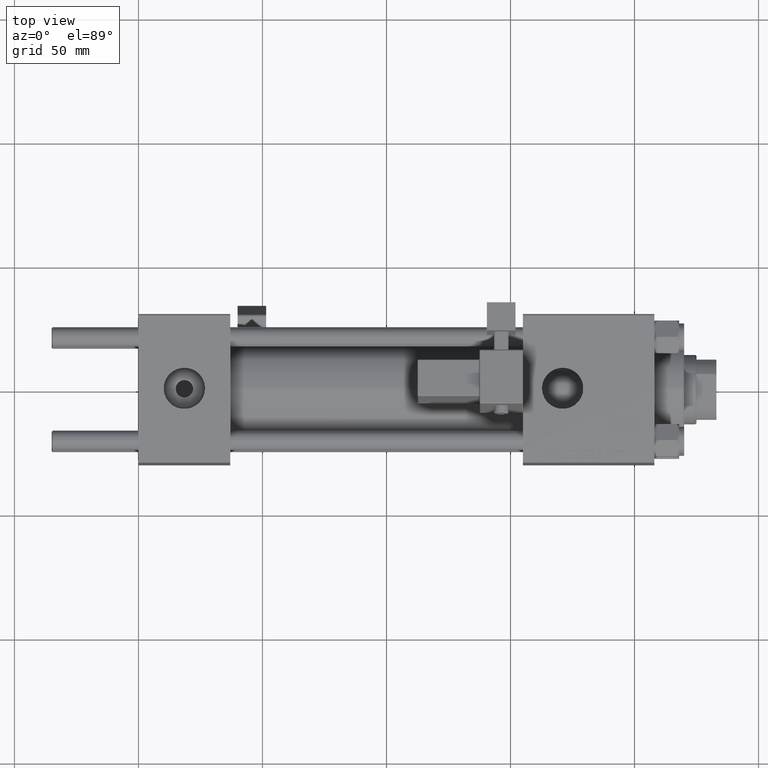
[diagram: clean part render]
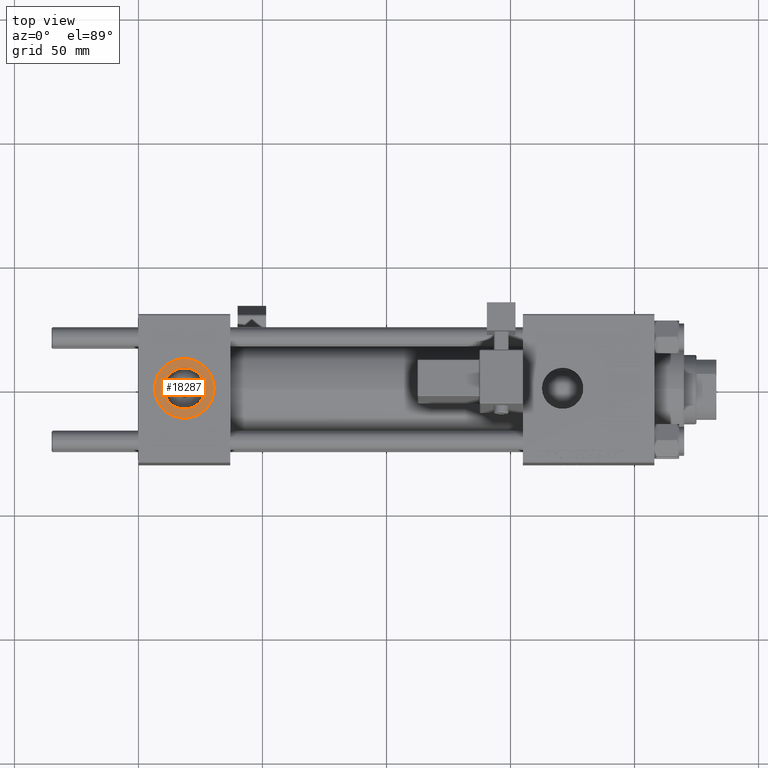
[diagram: same view with one face highlighted and labeled with its STEP entity id]
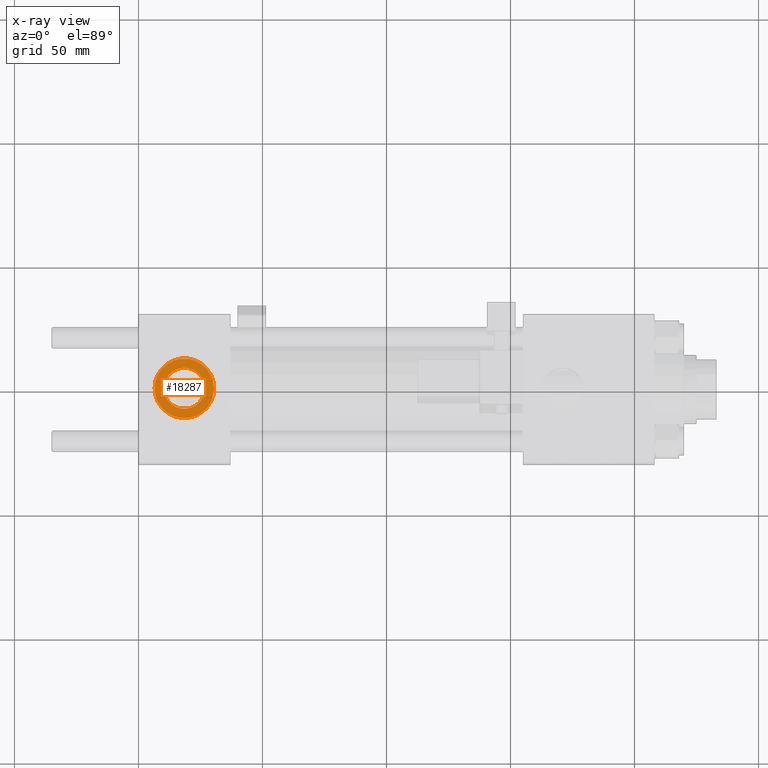
[diagram: x-ray of the same camera — body ghosted, the highlighted face saturated]
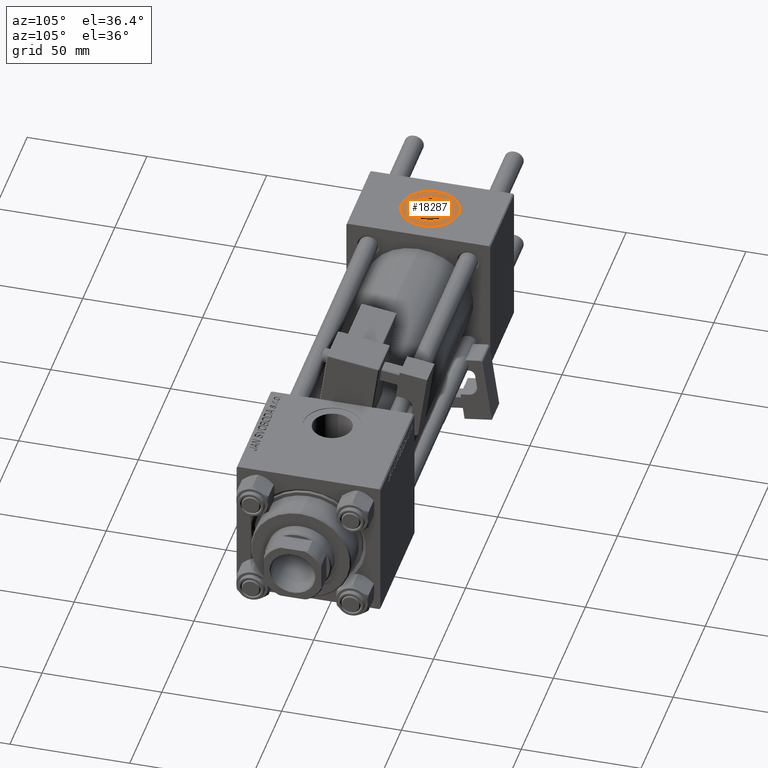
[diagram: same view with one face highlighted and labeled with its STEP entity id]
A machine part, top view. The second image highlights one B-rep face of the part: STEP entity #18287.
The next image is the same camera in x-ray: the body ghosted, the highlighted face saturated — about 0% of this face is hidden behind the body in this view.
A second angle (auxiliary view) of the same face is appended — the face is thin or edge-on in the first view.
In plain terms, the highlighted planar face has unit normal (0, 0, 1).
Its self-contained STEP definition (entity closure, byte-faithful):
#492 = AXIS2_PLACEMENT_3D ( 'NONE', #35419, #51236, #7257 ) ;
#3117 = DIRECTION ( 'NONE',  ( 0.000000000000000000, 0.000000000000000000, 1.000000000000000000 ) ) ;
#4052 = AXIS2_PLACEMENT_3D ( 'NONE', #27112, #3117, #7087 ) ;
#5197 = AXIS2_PLACEMENT_3D ( 'NONE', #50227, #30212, #41271 ) ;
#6198 = EDGE_LOOP ( 'NONE', ( #18844, #41264 ) ) ;
#7087 = DIRECTION ( 'NONE',  ( 1.000000000000000000, 0.000000000000000000, -0.000000000000000000 ) ) ;
#7257 = DIRECTION ( 'NONE',  ( 1.000000000000000000, 0.000000000000000000, 0.000000000000000000 ) ) ;
#8553 = CIRCLE ( 'NONE', #5197, 12.00000000000000000 ) ;
#9729 = CIRCLE ( 'NONE', #44175, 8.330000000000000071 ) ;
#9950 = CIRCLE ( 'NONE', #20049, 12.00000000000000000 ) ;
#11052 = FACE_OUTER_BOUND ( 'NONE', #6198, .T. ) ;
#11439 = ORIENTED_EDGE ( 'NONE', *, *, #13225, .F. ) ;
#12031 = EDGE_CURVE ( 'NONE', #19427, #14432, #9729, .T. ) ;
#13225 = EDGE_CURVE ( 'NONE', #14432, #19427, #47603, .T. ) ;
#14432 = VERTEX_POINT ( 'NONE', #35870 ) ;
#14435 = DIRECTION ( 'NONE',  ( 0.000000000000000000, 0.000000000000000000, 1.000000000000000000 ) ) ;
#17755 = ORIENTED_EDGE ( 'NONE', *, *, #12031, .F. ) ;
#18287 = ADVANCED_FACE ( 'NONE', ( #18449, #11052 ), #26854, .T. ) ;
#18449 = FACE_BOUND ( 'NONE', #36653, .T. ) ;
#18492 = EDGE_CURVE ( 'NONE', #47743, #43041, #9950, .T. ) ;
#18844 = ORIENTED_EDGE ( 'NONE', *, *, #18492, .T. ) ;
#19427 = VERTEX_POINT ( 'NONE', #48091 ) ;
#20049 = AXIS2_PLACEMENT_3D ( 'NONE', #38885, #14435, #26015 ) ;
#23021 = CARTESIAN_POINT ( 'NONE',  ( 30.50000000000000000, -3.469446951953614978E-15, 29.79999999999999716 ) ) ;
#26015 = DIRECTION ( 'NONE',  ( 1.000000000000000000, 0.000000000000000000, 0.000000000000000000 ) ) ;
#26854 = PLANE ( 'NONE',  #4052 ) ;
#27056 = EDGE_CURVE ( 'NONE', #43041, #47743, #8553, .T. ) ;
#27112 = CARTESIAN_POINT ( 'NONE',  ( 18.50000000000000000, -3.469446951953614978E-15, 29.79999999999999716 ) ) ;
#28366 = DIRECTION ( 'NONE',  ( 1.000000000000000000, 0.000000000000000000, 0.000000000000000000 ) ) ;
#30212 = DIRECTION ( 'NONE',  ( 0.000000000000000000, 0.000000000000000000, 1.000000000000000000 ) ) ;
#34053 = DIRECTION ( 'NONE',  ( 0.000000000000000000, 0.000000000000000000, 1.000000000000000000 ) ) ;
#35419 = CARTESIAN_POINT ( 'NONE',  ( 18.50000000000000000, -3.469446951953614978E-15, 29.79999999999999716 ) ) ;
#35870 = CARTESIAN_POINT ( 'NONE',  ( 26.82999999999999829, -3.469446951953614978E-15, 29.79999999999999716 ) ) ;
#36653 = EDGE_LOOP ( 'NONE', ( #11439, #17755 ) ) ;
#36768 = CARTESIAN_POINT ( 'NONE',  ( 18.50000000000000000, -3.469446951953614978E-15, 29.79999999999999716 ) ) ;
#38885 = CARTESIAN_POINT ( 'NONE',  ( 18.50000000000000000, -3.469446951953614978E-15, 29.79999999999999716 ) ) ;
#41264 = ORIENTED_EDGE ( 'NONE', *, *, #27056, .T. ) ;
#41271 = DIRECTION ( 'NONE',  ( 1.000000000000000000, 0.000000000000000000, 0.000000000000000000 ) ) ;
#42741 = CARTESIAN_POINT ( 'NONE',  ( 6.499999999999997335, -1.999870792976790833E-15, 29.79999999999999716 ) ) ;
#43041 = VERTEX_POINT ( 'NONE', #42741 ) ;
#44175 = AXIS2_PLACEMENT_3D ( 'NONE', #36768, #34053, #28366 ) ;
#47603 = CIRCLE ( 'NONE', #492, 8.330000000000000071 ) ;
#47743 = VERTEX_POINT ( 'NONE', #23021 ) ;
#48091 = CARTESIAN_POINT ( 'NONE',  ( 10.16999999999999638, -2.449316168263869821E-15, 29.79999999999999716 ) ) ;
#50227 = CARTESIAN_POINT ( 'NONE',  ( 18.50000000000000000, -3.469446951953614978E-15, 29.79999999999999716 ) ) ;
#51236 = DIRECTION ( 'NONE',  ( 0.000000000000000000, 0.000000000000000000, 1.000000000000000000 ) ) ;